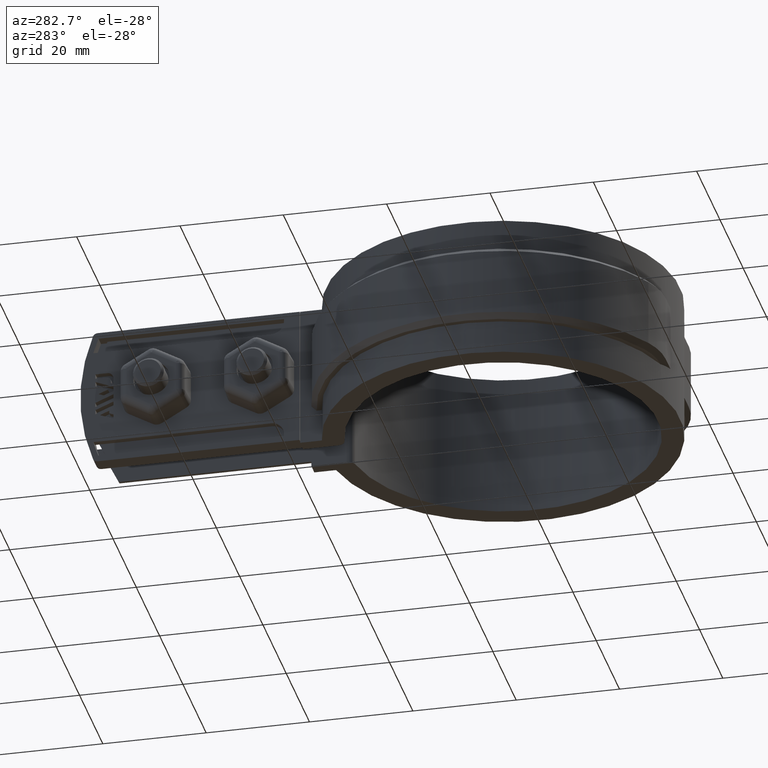
[diagram: clean part render]
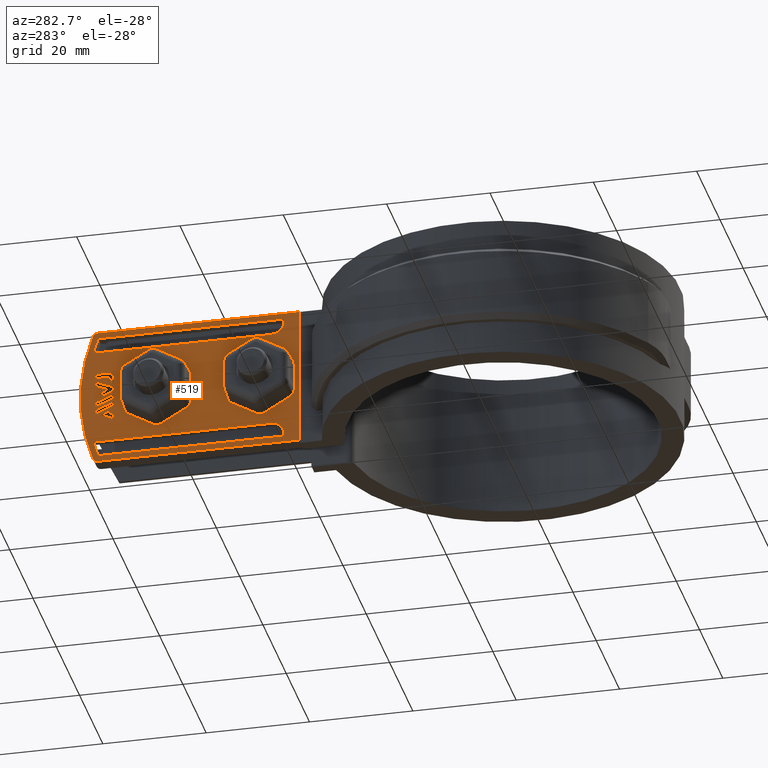
[diagram: same view with one face highlighted and labeled with its STEP entity id]
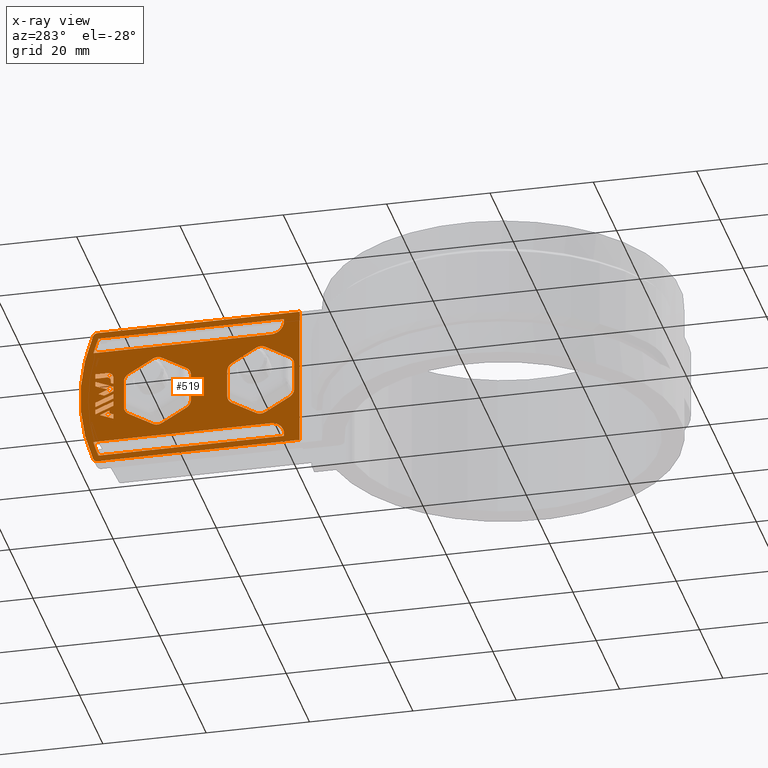
[diagram: x-ray of the same camera — body ghosted, the highlighted face saturated]
A machine part, auxiliary view. The second image highlights one B-rep face of the part: STEP entity #519.
The next image is the same camera in x-ray: the body ghosted, the highlighted face saturated — about 0% of this face is hidden behind the body in this view.
In plain terms, the highlighted planar face has unit normal (-1, 0, -0).
Its self-contained STEP definition (entity closure, byte-faithful):
#519 = ADVANCED_FACE( '', ( #1056, #1057, #1058, #1059, #1060, #1061, #1062, #1063, #1064, #1065 ), #1066, .T. );
#1056 = FACE_BOUND( '', #2342, .T. );
#1057 = FACE_BOUND( '', #2343, .T. );
#1058 = FACE_BOUND( '', #2344, .T. );
#1059 = FACE_BOUND( '', #2345, .T. );
#1060 = FACE_BOUND( '', #2346, .T. );
#1061 = FACE_OUTER_BOUND( '', #2347, .T. );
#1062 = FACE_BOUND( '', #2348, .T. );
#1063 = FACE_BOUND( '', #2349, .T. );
#1064 = FACE_BOUND( '', #2350, .T. );
#1065 = FACE_BOUND( '', #2351, .T. );
#1066 = PLANE( '', #2352 );
#2342 = EDGE_LOOP( '', ( #5198, #5199, #5200, #5201, #5202 ) );
#2343 = EDGE_LOOP( '', ( #5203, #5204, #5205, #5206 ) );
#2344 = EDGE_LOOP( '', ( #5207, #5208, #5209, #5210, #5211 ) );
#2345 = EDGE_LOOP( '', ( #5212, #5213, #5214, #5215, #5216, #5217, #5218, #5219, #5220, #5221, #5222, #5223 ) );
#2346 = EDGE_LOOP( '', ( #5224, #5225, #5226, #5227, #5228, #5229, #5230, #5231, #5232, #5233, #5234, #5235 ) );
#2347 = EDGE_LOOP( '', ( #5236, #5237, #5238, #5239, #5240, #5241 ) );
#2348 = EDGE_LOOP( '', ( #5242, #5243, #5244, #5245, #5246 ) );
#2349 = EDGE_LOOP( '', ( #5247, #5248, #5249, #5250, #5251, #5252, #5253, #5254, #5255, #5256, #5257, #5258, #5259, #5260, #5261, #5262, #5263, #5264, #5265, #5266, #5267, #5268, #5269, #5270, #5271, #5272, #5273, #5274, #5275, #5276, #5277, #5278, #5279, #5280, #5281, #5282, #5283, #5284, #5285, #5286 ) );
#2350 = EDGE_LOOP( '', ( #5287, #5288, #5289, #5290, #5291, #5292, #5293 ) );
#2351 = EDGE_LOOP( '', ( #5294, #5295, #5296, #5297 ) );
#2352 = AXIS2_PLACEMENT_3D( '', #5298, #5299, #5300 );
#5198 = ORIENTED_EDGE( '', *, *, #7214, .T. );
#5199 = ORIENTED_EDGE( '', *, *, #7215, .T. );
#5200 = ORIENTED_EDGE( '', *, *, #7216, .T. );
#5201 = ORIENTED_EDGE( '', *, *, #7217, .T. );
#5202 = ORIENTED_EDGE( '', *, *, #7218, .T. );
#5203 = ORIENTED_EDGE( '', *, *, #7219, .T. );
#5204 = ORIENTED_EDGE( '', *, *, #7220, .T. );
#5205 = ORIENTED_EDGE( '', *, *, #7221, .T. );
#5206 = ORIENTED_EDGE( '', *, *, #7222, .T. );
#5207 = ORIENTED_EDGE( '', *, *, #7223, .T. );
#5208 = ORIENTED_EDGE( '', *, *, #7224, .F. );
#5209 = ORIENTED_EDGE( '', *, *, #7225, .T. );
#5210 = ORIENTED_EDGE( '', *, *, #7226, .T. );
#5211 = ORIENTED_EDGE( '', *, *, #7227, .T. );
#5212 = ORIENTED_EDGE( '', *, *, #7228, .F. );
#5213 = ORIENTED_EDGE( '', *, *, #7229, .F. );
#5214 = ORIENTED_EDGE( '', *, *, #7230, .F. );
#5215 = ORIENTED_EDGE( '', *, *, #7231, .F. );
#5216 = ORIENTED_EDGE( '', *, *, #7232, .F. );
#5217 = ORIENTED_EDGE( '', *, *, #7233, .F. );
#5218 = ORIENTED_EDGE( '', *, *, #7234, .F. );
#5219 = ORIENTED_EDGE( '', *, *, #7235, .F. );
#5220 = ORIENTED_EDGE( '', *, *, #7236, .F. );
#5221 = ORIENTED_EDGE( '', *, *, #7237, .F. );
#5222 = ORIENTED_EDGE( '', *, *, #7238, .F. );
#5223 = ORIENTED_EDGE( '', *, *, #7239, .F. );
#5224 = ORIENTED_EDGE( '', *, *, #7240, .F. );
#5225 = ORIENTED_EDGE( '', *, *, #7241, .F. );
#5226 = ORIENTED_EDGE( '', *, *, #7242, .F. );
#5227 = ORIENTED_EDGE( '', *, *, #7243, .F. );
#5228 = ORIENTED_EDGE( '', *, *, #7244, .F. );
#5229 = ORIENTED_EDGE( '', *, *, #7245, .F. );
#5230 = ORIENTED_EDGE( '', *, *, #7246, .F. );
#5231 = ORIENTED_EDGE( '', *, *, #7247, .F. );
#5232 = ORIENTED_EDGE( '', *, *, #7248, .F. );
#5233 = ORIENTED_EDGE( '', *, *, #7249, .F. );
#5234 = ORIENTED_EDGE( '', *, *, #7250, .F. );
#5235 = ORIENTED_EDGE( '', *, *, #7251, .F. );
#5236 = ORIENTED_EDGE( '', *, *, #7252, .T. );
#5237 = ORIENTED_EDGE( '', *, *, #7253, .T. );
#5238 = ORIENTED_EDGE( '', *, *, #7254, .T. );
#5239 = ORIENTED_EDGE( '', *, *, #7255, .T. );
#5240 = ORIENTED_EDGE( '', *, *, #7256, .T. );
#5241 = ORIENTED_EDGE( '', *, *, #7257, .T. );
#5242 = ORIENTED_EDGE( '', *, *, #7258, .T. );
#5243 = ORIENTED_EDGE( '', *, *, #7259, .T. );
#5244 = ORIENTED_EDGE( '', *, *, #7260, .T. );
#5245 = ORIENTED_EDGE( '', *, *, #7261, .T. );
#5246 = ORIENTED_EDGE( '', *, *, #7262, .F. );
#5247 = ORIENTED_EDGE( '', *, *, #7263, .T. );
#5248 = ORIENTED_EDGE( '', *, *, #7264, .T. );
#5249 = ORIENTED_EDGE( '', *, *, #7265, .T. );
#5250 = ORIENTED_EDGE( '', *, *, #7266, .T. );
#5251 = ORIENTED_EDGE( '', *, *, #7267, .T. );
#5252 = ORIENTED_EDGE( '', *, *, #7268, .T. );
#5253 = ORIENTED_EDGE( '', *, *, #7269, .T. );
#5254 = ORIENTED_EDGE( '', *, *, #7270, .T. );
#5255 = ORIENTED_EDGE( '', *, *, #7271, .T. );
#5256 = ORIENTED_EDGE( '', *, *, #7272, .T. );
#5257 = ORIENTED_EDGE( '', *, *, #7273, .T. );
#5258 = ORIENTED_EDGE( '', *, *, #7274, .T. );
#5259 = ORIENTED_EDGE( '', *, *, #7275, .T. );
#5260 = ORIENTED_EDGE( '', *, *, #7276, .T. );
#5261 = ORIENTED_EDGE( '', *, *, #7277, .T. );
#5262 = ORIENTED_EDGE( '', *, *, #7278, .T. );
#5263 = ORIENTED_EDGE( '', *, *, #7279, .T. );
#5264 = ORIENTED_EDGE( '', *, *, #7280, .T. );
#5265 = ORIENTED_EDGE( '', *, *, #7281, .T. );
#5266 = ORIENTED_EDGE( '', *, *, #7282, .T. );
#5267 = ORIENTED_EDGE( '', *, *, #7283, .T. );
#5268 = ORIENTED_EDGE( '', *, *, #7284, .T. );
#5269 = ORIENTED_EDGE( '', *, *, #7285, .T. );
#5270 = ORIENTED_EDGE( '', *, *, #7286, .T. );
#5271 = ORIENTED_EDGE( '', *, *, #7287, .T. );
#5272 = ORIENTED_EDGE( '', *, *, #7288, .T. );
#5273 = ORIENTED_EDGE( '', *, *, #7289, .T. );
#5274 = ORIENTED_EDGE( '', *, *, #7290, .T. );
#5275 = ORIENTED_EDGE( '', *, *, #7291, .T. );
#5276 = ORIENTED_EDGE( '', *, *, #7292, .T. );
#5277 = ORIENTED_EDGE( '', *, *, #7293, .T. );
#5278 = ORIENTED_EDGE( '', *, *, #7294, .T. );
#5279 = ORIENTED_EDGE( '', *, *, #7295, .T. );
#5280 = ORIENTED_EDGE( '', *, *, #7296, .T. );
#5281 = ORIENTED_EDGE( '', *, *, #7297, .T. );
#5282 = ORIENTED_EDGE( '', *, *, #7298, .T. );
#5283 = ORIENTED_EDGE( '', *, *, #7299, .T. );
#5284 = ORIENTED_EDGE( '', *, *, #7300, .T. );
#5285 = ORIENTED_EDGE( '', *, *, #7301, .T. );
#5286 = ORIENTED_EDGE( '', *, *, #7302, .T. );
#5287 = ORIENTED_EDGE( '', *, *, #7303, .T. );
#5288 = ORIENTED_EDGE( '', *, *, #7304, .T. );
#5289 = ORIENTED_EDGE( '', *, *, #7305, .T. );
#5290 = ORIENTED_EDGE( '', *, *, #7306, .T. );
#5291 = ORIENTED_EDGE( '', *, *, #7307, .T. );
#5292 = ORIENTED_EDGE( '', *, *, #7308, .T. );
#5293 = ORIENTED_EDGE( '', *, *, #7309, .T. );
#5294 = ORIENTED_EDGE( '', *, *, #7310, .T. );
#5295 = ORIENTED_EDGE( '', *, *, #7311, .T. );
#5296 = ORIENTED_EDGE( '', *, *, #7312, .T. );
#5297 = ORIENTED_EDGE( '', *, *, #7313, .T. );
#5298 = CARTESIAN_POINT( '', ( -6.69999999999996, 43.8989738519301, -12.4999999999984 ) );
#5299 = DIRECTION( '', ( -1.00000000000000, 6.81102793110751E-016, -3.55799675438473E-016 ) );
#5300 = DIRECTION( '', ( 6.81102793110752E-016, 1.00000000000000, 1.97370347596304E-018 ) );
#7214 = EDGE_CURVE( '', #8428, #8429, #8430, .T. );
#7215 = EDGE_CURVE( '', #8429, #8431, #8432, .T. );
#7216 = EDGE_CURVE( '', #8431, #8433, #8434, .T. );
#7217 = EDGE_CURVE( '', #8433, #8435, #8436, .T. );
#7218 = EDGE_CURVE( '', #8435, #8428, #8437, .T. );
#7219 = EDGE_CURVE( '', #8438, #8439, #8440, .T. );
#7220 = EDGE_CURVE( '', #8439, #8441, #8442, .T. );
#7221 = EDGE_CURVE( '', #8441, #8443, #8444, .T. );
#7222 = EDGE_CURVE( '', #8443, #8438, #8445, .T. );
#7223 = EDGE_CURVE( '', #8446, #8447, #8448, .F. );
#7224 = EDGE_CURVE( '', #8449, #8447, #8450, .T. );
#7225 = EDGE_CURVE( '', #8449, #8451, #8452, .T. );
#7226 = EDGE_CURVE( '', #8451, #8453, #8454, .T. );
#7227 = EDGE_CURVE( '', #8453, #8446, #8455, .T. );
#7228 = EDGE_CURVE( '', #8456, #8457, #8458, .F. );
#7229 = EDGE_CURVE( '', #8459, #8456, #8460, .T. );
#7230 = EDGE_CURVE( '', #8461, #8459, #8462, .F. );
#7231 = EDGE_CURVE( '', #8463, #8461, #8464, .T. );
#7232 = EDGE_CURVE( '', #8465, #8463, #8466, .F. );
#7233 = EDGE_CURVE( '', #8467, #8465, #8468, .T. );
#7234 = EDGE_CURVE( '', #8469, #8467, #8470, .F. );
#7235 = EDGE_CURVE( '', #8471, #8469, #8472, .T. );
#7236 = EDGE_CURVE( '', #8473, #8471, #8474, .F. );
#7237 = EDGE_CURVE( '', #8475, #8473, #8476, .T. );
#7238 = EDGE_CURVE( '', #8477, #8475, #8478, .F. );
#7239 = EDGE_CURVE( '', #8457, #8477, #8479, .T. );
#7240 = EDGE_CURVE( '', #8480, #8481, #8482, .F. );
#7241 = EDGE_CURVE( '', #8483, #8480, #8484, .T. );
#7242 = EDGE_CURVE( '', #8485, #8483, #8486, .F. );
#7243 = EDGE_CURVE( '', #8487, #8485, #8488, .T. );
#7244 = EDGE_CURVE( '', #8489, #8487, #8490, .F. );
#7245 = EDGE_CURVE( '', #8491, #8489, #8492, .T. );
#7246 = EDGE_CURVE( '', #8493, #8491, #8494, .F. );
#7247 = EDGE_CURVE( '', #8495, #8493, #8496, .T. );
#7248 = EDGE_CURVE( '', #8497, #8495, #8498, .F. );
#7249 = EDGE_CURVE( '', #8499, #8497, #8500, .T. );
#7250 = EDGE_CURVE( '', #8501, #8499, #8502, .F. );
#7251 = EDGE_CURVE( '', #8481, #8501, #8503, .T. );
#7252 = EDGE_CURVE( '', #8504, #8505, #8506, .T. );
#7253 = EDGE_CURVE( '', #8505, #8507, #8508, .T. );
#7254 = EDGE_CURVE( '', #8507, #8509, #8510, .T. );
#7255 = EDGE_CURVE( '', #8509, #8511, #8512, .T. );
#7256 = EDGE_CURVE( '', #8511, #8513, #8514, .T. );
#7257 = EDGE_CURVE( '', #8513, #8504, #8515, .T. );
#7258 = EDGE_CURVE( '', #8516, #8517, #8518, .F. );
#7259 = EDGE_CURVE( '', #8517, #8519, #8520, .T. );
#7260 = EDGE_CURVE( '', #8519, #8521, #8522, .T. );
#7261 = EDGE_CURVE( '', #8521, #8523, #8524, .T. );
#7262 = EDGE_CURVE( '', #8516, #8523, #8525, .T. );
#7263 = EDGE_CURVE( '', #8526, #8527, #8528, .T. );
#7264 = EDGE_CURVE( '', #8527, #8529, #8530, .T. );
#7265 = EDGE_CURVE( '', #8529, #8531, #8532, .T. );
#7266 = EDGE_CURVE( '', #8531, #8533, #8534, .T. );
#7267 = EDGE_CURVE( '', #8533, #8535, #8536, .T. );
#7268 = EDGE_CURVE( '', #8535, #8537, #8538, .T. );
#7269 = EDGE_CURVE( '', #8537, #8539, #8540, .T. );
#7270 = EDGE_CURVE( '', #8539, #8541, #8542, .T. );
#7271 = EDGE_CURVE( '', #8541, #8543, #8544, .T. );
#7272 = EDGE_CURVE( '', #8543, #8545, #8546, .T. );
#7273 = EDGE_CURVE( '', #8545, #8547, #8548, .T. );
#7274 = EDGE_CURVE( '', #8547, #8549, #8550, .T. );
#7275 = EDGE_CURVE( '', #8549, #8551, #8552, .T. );
#7276 = EDGE_CURVE( '', #8551, #8553, #8554, .T. );
#7277 = EDGE_CURVE( '', #8553, #8555, #8556, .T. );
#7278 = EDGE_CURVE( '', #8555, #8557, #8558, .T. );
#7279 = EDGE_CURVE( '', #8557, #8559, #8560, .T. );
#7280 = EDGE_CURVE( '', #8559, #8561, #8562, .T. );
#7281 = EDGE_CURVE( '', #8561, #8563, #8564, .T. );
#7282 = EDGE_CURVE( '', #8563, #8565, #8566, .T. );
#7283 = EDGE_CURVE( '', #8565, #8567, #8568, .T. );
#7284 = EDGE_CURVE( '', #8567, #8569, #8570, .T. );
#7285 = EDGE_CURVE( '', #8569, #8571, #8572, .T. );
#7286 = EDGE_CURVE( '', #8571, #8573, #8574, .T. );
#7287 = EDGE_CURVE( '', #8573, #8575, #8576, .T. );
#7288 = EDGE_CURVE( '', #8575, #8577, #8578, .T. );
#7289 = EDGE_CURVE( '', #8577, #8579, #8580, .T. );
#7290 = EDGE_CURVE( '', #8579, #8581, #8582, .T. );
#7291 = EDGE_CURVE( '', #8581, #8583, #8584, .T. );
#7292 = EDGE_CURVE( '', #8583, #8585, #8586, .T. );
#7293 = EDGE_CURVE( '', #8585, #8587, #8588, .T. );
#7294 = EDGE_CURVE( '', #8587, #8589, #8590, .T. );
#7295 = EDGE_CURVE( '', #8589, #8591, #8592, .T. );
#7296 = EDGE_CURVE( '', #8591, #8593, #8594, .T. );
#7297 = EDGE_CURVE( '', #8593, #8595, #8596, .T. );
#7298 = EDGE_CURVE( '', #8595, #8597, #8598, .T. );
#7299 = EDGE_CURVE( '', #8597, #8599, #8600, .T. );
#7300 = EDGE_CURVE( '', #8599, #8601, #8602, .T. );
#7301 = EDGE_CURVE( '', #8601, #8603, #8604, .T. );
#7302 = EDGE_CURVE( '', #8603, #8526, #8605, .F. );
#7303 = EDGE_CURVE( '', #8606, #8607, #8608, .T. );
#7304 = EDGE_CURVE( '', #8607, #8609, #8610, .T. );
#7305 = EDGE_CURVE( '', #8609, #8611, #8612, .T. );
#7306 = EDGE_CURVE( '', #8611, #8613, #8614, .T. );
#7307 = EDGE_CURVE( '', #8613, #8615, #8616, .T. );
#7308 = EDGE_CURVE( '', #8615, #8617, #8618, .T. );
#7309 = EDGE_CURVE( '', #8617, #8606, #8619, .T. );
#7310 = EDGE_CURVE( '', #8620, #8621, #8622, .T. );
#7311 = EDGE_CURVE( '', #8621, #8623, #8624, .T. );
#7312 = EDGE_CURVE( '', #8623, #8625, #8626, .T. );
#7313 = EDGE_CURVE( '', #8625, #8620, #8627, .T. );
#8428 = VERTEX_POINT( '', #12110 );
#8429 = VERTEX_POINT( '', #12111 );
#8430 = LINE( '', #12112, #12113 );
#8431 = VERTEX_POINT( '', #12114 );
#8432 = LINE( '', #12115, #12116 );
#8433 = VERTEX_POINT( '', #12117 );
#8434 = LINE( '', #12118, #12119 );
#8435 = VERTEX_POINT( '', #12120 );
#8436 = LINE( '', #12121, #12122 );
#8437 = LINE( '', #12123, #12124 );
#8438 = VERTEX_POINT( '', #12125 );
#8439 = VERTEX_POINT( '', #12126 );
#8440 = LINE( '', #12127, #12128 );
#8441 = VERTEX_POINT( '', #12129 );
#8442 = LINE( '', #12130, #12131 );
#8443 = VERTEX_POINT( '', #12132 );
#8444 = LINE( '', #12133, #12134 );
#8445 = LINE( '', #12135, #12136 );
#8446 = VERTEX_POINT( '', #12137 );
#8447 = VERTEX_POINT( '', #12138 );
#8448 = CIRCLE( '', #12139, 35.1999999999925 );
#8449 = VERTEX_POINT( '', #12140 );
#8450 = LINE( '', #12141, #12142 );
#8451 = VERTEX_POINT( '', #12143 );
#8452 = LINE( '', #12144, #12145 );
#8453 = VERTEX_POINT( '', #12146 );
#8454 = CIRCLE( '', #12147, 2.49999999999946 );
#8455 = LINE( '', #12148, #12149 );
#8456 = VERTEX_POINT( '', #12150 );
#8457 = VERTEX_POINT( '', #12151 );
#8458 = LINE( '', #12152, #12153 );
#8459 = VERTEX_POINT( '', #12154 );
#8460 = CIRCLE( '', #12155, 1.77252045227143 );
#8461 = VERTEX_POINT( '', #12156 );
#8462 = LINE( '', #12157, #12158 );
#8463 = VERTEX_POINT( '', #12159 );
#8464 = CIRCLE( '', #12160, 1.77252045227143 );
#8465 = VERTEX_POINT( '', #12161 );
#8466 = LINE( '', #12162, #12163 );
#8467 = VERTEX_POINT( '', #12164 );
#8468 = CIRCLE( '', #12165, 1.77252045227144 );
#8469 = VERTEX_POINT( '', #12166 );
#8470 = LINE( '', #12167, #12168 );
#8471 = VERTEX_POINT( '', #12169 );
#8472 = CIRCLE( '', #12170, 1.77252045227144 );
#8473 = VERTEX_POINT( '', #12171 );
#8474 = LINE( '', #12172, #12173 );
#8475 = VERTEX_POINT( '', #12174 );
#8476 = CIRCLE( '', #12175, 1.77252045227143 );
#8477 = VERTEX_POINT( '', #12176 );
#8478 = LINE( '', #12177, #12178 );
#8479 = CIRCLE( '', #12179, 1.77252045227144 );
#8480 = VERTEX_POINT( '', #12180 );
#8481 = VERTEX_POINT( '', #12181 );
#8482 = LINE( '', #12182, #12183 );
#8483 = VERTEX_POINT( '', #12184 );
#8484 = CIRCLE( '', #12185, 1.77252045227147 );
#8485 = VERTEX_POINT( '', #12186 );
#8486 = LINE( '', #12187, #12188 );
#8487 = VERTEX_POINT( '', #12189 );
#8488 = CIRCLE( '', #12190, 1.77252045227147 );
#8489 = VERTEX_POINT( '', #12191 );
#8490 = LINE( '', #12192, #12193 );
#8491 = VERTEX_POINT( '', #12194 );
#8492 = CIRCLE( '', #12195, 1.77252045227147 );
#8493 = VERTEX_POINT( '', #12196 );
#8494 = LINE( '', #12197, #12198 );
#8495 = VERTEX_POINT( '', #12199 );
#8496 = CIRCLE( '', #12200, 1.77252045227148 );
#8497 = VERTEX_POINT( '', #12201 );
#8498 = LINE( '', #12202, #12203 );
#8499 = VERTEX_POINT( '', #12204 );
#8500 = CIRCLE( '', #12205, 1.77252045227147 );
#8501 = VERTEX_POINT( '', #12206 );
#8502 = LINE( '', #12207, #12208 );
#8503 = CIRCLE( '', #12209, 1.77252045227148 );
#8504 = VERTEX_POINT( '', #12210 );
#8505 = VERTEX_POINT( '', #12211 );
#8506 = CIRCLE( '', #12212, 36.3999999999930 );
#8507 = VERTEX_POINT( '', #12213 );
#8508 = CIRCLE( '', #12214, 0.999999999999786 );
#8509 = VERTEX_POINT( '', #12215 );
#8510 = LINE( '', #12216, #12217 );
#8511 = VERTEX_POINT( '', #12218 );
#8512 = LINE( '', #12219, #12220 );
#8513 = VERTEX_POINT( '', #12221 );
#8514 = LINE( '', #12222, #12223 );
#8515 = CIRCLE( '', #12224, 0.999999999999786 );
#8516 = VERTEX_POINT( '', #12225 );
#8517 = VERTEX_POINT( '', #12226 );
#8518 = CIRCLE( '', #12227, 35.1999999999925 );
#8519 = VERTEX_POINT( '', #12228 );
#8520 = LINE( '', #12229, #12230 );
#8521 = VERTEX_POINT( '', #12231 );
#8522 = CIRCLE( '', #12232, 2.49999999999952 );
#8523 = VERTEX_POINT( '', #12233 );
#8524 = LINE( '', #12234, #12235 );
#8525 = LINE( '', #12236, #12237 );
#8526 = VERTEX_POINT( '', #12238 );
#8527 = VERTEX_POINT( '', #12239 );
#8528 = LINE( '', #12240, #12241 );
#8529 = VERTEX_POINT( '', #12242 );
#8530 = LINE( '', #12243, #12244 );
#8531 = VERTEX_POINT( '', #12245 );
#8532 = LINE( '', #12246, #12247 );
#8533 = VERTEX_POINT( '', #12248 );
#8534 = LINE( '', #12249, #12250 );
#8535 = VERTEX_POINT( '', #12251 );
#8536 = LINE( '', #12252, #12253 );
#8537 = VERTEX_POINT( '', #12254 );
#8538 = LINE( '', #12255, #12256 );
#8539 = VERTEX_POINT( '', #12257 );
#8540 = LINE( '', #12258, #12259 );
#8541 = VERTEX_POINT( '', #12260 );
#8542 = LINE( '', #12261, #12262 );
#8543 = VERTEX_POINT( '', #12263 );
#8544 = LINE( '', #12264, #12265 );
#8545 = VERTEX_POINT( '', #12266 );
#8546 = LINE( '', #12267, #12268 );
#8547 = VERTEX_POINT( '', #12269 );
#8548 = LINE( '', #12270, #12271 );
#8549 = VERTEX_POINT( '', #12272 );
#8550 = LINE( '', #12273, #12274 );
#8551 = VERTEX_POINT( '', #12275 );
#8552 = LINE( '', #12276, #12277 );
#8553 = VERTEX_POINT( '', #12278 );
#8554 = LINE( '', #12279, #12280 );
#8555 = VERTEX_POINT( '', #12281 );
#8556 = LINE( '', #12282, #12283 );
#8557 = VERTEX_POINT( '', #12284 );
#8558 = LINE( '', #12285, #12286 );
#8559 = VERTEX_POINT( '', #12287 );
#8560 = LINE( '', #12288, #12289 );
#8561 = VERTEX_POINT( '', #12290 );
#8562 = LINE( '', #12291, #12292 );
#8563 = VERTEX_POINT( '', #12293 );
#8564 = LINE( '', #12294, #12295 );
#8565 = VERTEX_POINT( '', #12296 );
#8566 = LINE( '', #12297, #12298 );
#8567 = VERTEX_POINT( '', #12299 );
#8568 = LINE( '', #12300, #12301 );
#8569 = VERTEX_POINT( '', #12302 );
#8570 = LINE( '', #12303, #12304 );
#8571 = VERTEX_POINT( '', #12305 );
#8572 = LINE( '', #12306, #12307 );
#8573 = VERTEX_POINT( '', #12308 );
#8574 = LINE( '', #12309, #12310 );
#8575 = VERTEX_POINT( '', #12311 );
#8576 = LINE( '', #12312, #12313 );
#8577 = VERTEX_POINT( '', #12314 );
#8578 = LINE( '', #12315, #12316 );
#8579 = VERTEX_POINT( '', #12317 );
#8580 = LINE( '', #12318, #12319 );
#8581 = VERTEX_POINT( '', #12320 );
#8582 = LINE( '', #12321, #12322 );
#8583 = VERTEX_POINT( '', #12323 );
#8584 = LINE( '', #12324, #12325 );
#8585 = VERTEX_POINT( '', #12326 );
#8586 = LINE( '', #12327, #12328 );
#8587 = VERTEX_POINT( '', #12329 );
#8588 = LINE( '', #12330, #12331 );
#8589 = VERTEX_POINT( '', #12332 );
#8590 = LINE( '', #12333, #12334 );
#8591 = VERTEX_POINT( '', #12335 );
#8592 = LINE( '', #12336, #12337 );
#8593 = VERTEX_POINT( '', #12338 );
#8594 = LINE( '', #12339, #12340 );
#8595 = VERTEX_POINT( '', #12341 );
#8596 = LINE( '', #12342, #12343 );
#8597 = VERTEX_POINT( '', #12344 );
#8598 = LINE( '', #12345, #12346 );
#8599 = VERTEX_POINT( '', #12347 );
#8600 = LINE( '', #12348, #12349 );
#8601 = VERTEX_POINT( '', #12350 );
#8602 = LINE( '', #12351, #12352 );
#8603 = VERTEX_POINT( '', #12353 );
#8604 = LINE( '', #12354, #12355 );
#8605 = CIRCLE( '', #12356, 1.16712912069168 );
#8606 = VERTEX_POINT( '', #12357 );
#8607 = VERTEX_POINT( '', #12358 );
#8608 = LINE( '', #12359, #12360 );
#8609 = VERTEX_POINT( '', #12361 );
#8610 = LINE( '', #12362, #12363 );
#8611 = VERTEX_POINT( '', #12364 );
#8612 = LINE( '', #12365, #12366 );
#8613 = VERTEX_POINT( '', #12367 );
#8614 = LINE( '', #12368, #12369 );
#8615 = VERTEX_POINT( '', #12370 );
#8616 = LINE( '', #12371, #12372 );
#8617 = VERTEX_POINT( '', #12373 );
#8618 = LINE( '', #12374, #12375 );
#8619 = LINE( '', #12376, #12377 );
#8620 = VERTEX_POINT( '', #12378 );
#8621 = VERTEX_POINT( '', #12379 );
#8622 = LINE( '', #12380, #12381 );
#8623 = VERTEX_POINT( '', #12382 );
#8624 = LINE( '', #12383, #12384 );
#8625 = VERTEX_POINT( '', #12385 );
#8626 = LINE( '', #12386, #12387 );
#8627 = LINE( '', #12388, #12389 );
#12110 = CARTESIAN_POINT( '', ( -6.69999999999994, 74.7106718686982, -15.6427309999978 ) );
#12111 = CARTESIAN_POINT( '', ( -6.69999999999994, 74.7106718686982, -16.2049013519977 ) );
#12112 = CARTESIAN_POINT( '', ( -6.69999999999994, 74.7106718686982, -12.4999999999984 ) );
#12113 = VECTOR( '', #13950, 999.999999999951 );
#12114 = CARTESIAN_POINT( '', ( -6.69999999999994, 73.9026659646984, -16.5315944439976 ) );
#12115 = CARTESIAN_POINT( '', ( -6.69999999999995, 49.5156857365579, -26.3917426630063 ) );
#12116 = VECTOR( '', #13951, 999.999999999932 );
#12117 = CARTESIAN_POINT( '', ( -6.69999999999994, 73.9026659646984, -17.4353519199975 ) );
#12118 = CARTESIAN_POINT( '', ( -6.69999999999994, 73.9026659646984, -12.4999999999984 ) );
#12119 = VECTOR( '', #13952, 999.999999999951 );
#12120 = CARTESIAN_POINT( '', ( -6.69999999999993, 76.5257030786978, -16.3757128079977 ) );
#12121 = CARTESIAN_POINT( '', ( -6.69999999999995, 49.8224941226987, -27.1631181690054 ) );
#12122 = VECTOR( '', #13953, 999.999999999932 );
#12123 = CARTESIAN_POINT( '', ( -6.69999999999996, 47.1281525094041, -4.50381239750697 ) );
#12124 = VECTOR( '', #13954, 999.999999999932 );
#12125 = CARTESIAN_POINT( '', ( -6.69999999999994, 77.4011047886976, -14.5449628859980 ) );
#12126 = CARTESIAN_POINT( '', ( -6.69999999999993, 77.4011047886976, -13.6409432239982 ) );
#12127 = CARTESIAN_POINT( '', ( -6.69999999999993, 77.4011047886976, -12.4999999999984 ) );
#12128 = VECTOR( '', #13955, 999.999999999951 );
#12129 = CARTESIAN_POINT( '', ( -6.69999999999994, 73.9026659646984, -12.2273304499985 ) );
#12130 = CARTESIAN_POINT( '', ( -6.69999999999996, 48.2048855311373, -1.84363860576165 ) );
#12131 = VECTOR( '', #13956, 999.999999999932 );
#12132 = CARTESIAN_POINT( '', ( -6.69999999999994, 73.9026659646984, -13.1313508899983 ) );
#12133 = CARTESIAN_POINT( '', ( -6.69999999999994, 73.9026659646984, -12.4999999999984 ) );
#12134 = VECTOR( '', #13957, 999.999999999951 );
#12135 = CARTESIAN_POINT( '', ( -6.69999999999996, 47.8908647039627, -2.62077856056641 ) );
#12136 = VECTOR( '', #13958, 999.999999999932 );
#12137 = CARTESIAN_POINT( '', ( -6.69999999999994, 77.7927785955630, -3.00000000000024 ) );
#12138 = CARTESIAN_POINT( '', ( -6.69999999999995, 76.8047484211381, -8.13462610311884E-013 ) );
#12139 = AXIS2_PLACEMENT_3D( '', #13959, #13960, #13961 );
#12140 = CARTESIAN_POINT( '', ( -6.69999999999996, 40.8989738519308, -8.03138864911814E-013 ) );
#12141 = CARTESIAN_POINT( '', ( -6.69999999999997, 37.8989738519314, -8.01028140122419E-013 ) );
#12142 = VECTOR( '', #13962, 999.999999999929 );
#12143 = CARTESIAN_POINT( '', ( -6.69999999999996, 40.8989738519308, -0.500000000000706 ) );
#12144 = CARTESIAN_POINT( '', ( -6.69999999999996, 40.8989738519308, 1.19999999999896 ) );
#12145 = VECTOR( '', #13963, 999.999999999951 );
#12146 = CARTESIAN_POINT( '', ( -6.69999999999996, 43.3989738519302, -3.00000000000023 ) );
#12147 = AXIS2_PLACEMENT_3D( '', #13964, #13965, #13966 );
#12148 = CARTESIAN_POINT( '', ( -6.69999999999996, 43.3989738519302, -3.00000000000023 ) );
#12149 = VECTOR( '', #13967, 999.999999999929 );
#12150 = CARTESIAN_POINT( '', ( -6.69999999999994, 71.8714943041959, -9.78645373480769 ) );
#12151 = CARTESIAN_POINT( '', ( -6.69999999999994, 71.8714943041959, -15.2135462651891 ) );
#12152 = CARTESIAN_POINT( '', ( -6.69999999999994, 71.8714943041959, -15.2135462651891 ) );
#12153 = VECTOR( '', #13968, 999.999999999951 );
#12154 = CARTESIAN_POINT( '', ( -6.69999999999994, 70.9852340780602, -8.25140599441310 ) );
#12155 = AXIS2_PLACEMENT_3D( '', #13969, #13970, #13971 );
#12156 = CARTESIAN_POINT( '', ( -6.69999999999995, 66.2852340780612, -5.53785972922240 ) );
#12157 = CARTESIAN_POINT( '', ( -6.69999999999994, 73.3352340780597, -9.60817912700846 ) );
#12158 = VECTOR( '', #13972, 999.999999999934 );
#12159 = CARTESIAN_POINT( '', ( -6.69999999999995, 64.5127136257897, -5.53785972922238 ) );
#12160 = AXIS2_PLACEMENT_3D( '', #13973, #13974, #13975 );
#12161 = CARTESIAN_POINT( '', ( -6.69999999999995, 59.8127136257907, -8.25140599441310 ) );
#12162 = CARTESIAN_POINT( '', ( -6.69999999999995, 64.5127136257897, -5.53785972922238 ) );
#12163 = VECTOR( '', #13976, 999.999999999934 );
#12164 = CARTESIAN_POINT( '', ( -6.69999999999995, 58.9264533996550, -9.78645373480769 ) );
#12165 = AXIS2_PLACEMENT_3D( '', #13977, #13978, #13979 );
#12166 = CARTESIAN_POINT( '', ( -6.69999999999995, 58.9264533996550, -15.2135462651891 ) );
#12167 = CARTESIAN_POINT( '', ( -6.69999999999995, 58.9264533996550, -15.2135462651891 ) );
#12168 = VECTOR( '', #13980, 999.999999999951 );
#12169 = CARTESIAN_POINT( '', ( -6.69999999999995, 59.8127136257907, -16.7485940055837 ) );
#12170 = AXIS2_PLACEMENT_3D( '', #13981, #13982, #13983 );
#12171 = CARTESIAN_POINT( '', ( -6.69999999999994, 64.5127136257898, -19.4621402707744 ) );
#12172 = CARTESIAN_POINT( '', ( -6.69999999999994, 66.8627136257893, -20.8189134033698 ) );
#12173 = VECTOR( '', #13984, 999.999999999934 );
#12174 = CARTESIAN_POINT( '', ( -6.69999999999994, 66.2852340780612, -19.4621402707744 ) );
#12175 = AXIS2_PLACEMENT_3D( '', #13985, #13986, #13987 );
#12176 = CARTESIAN_POINT( '', ( -6.69999999999994, 70.9852340780602, -16.7485940055837 ) );
#12177 = CARTESIAN_POINT( '', ( -6.69999999999994, 70.9852340780602, -16.7485940055837 ) );
#12178 = VECTOR( '', #13988, 999.999999999934 );
#12179 = AXIS2_PLACEMENT_3D( '', #13989, #13990, #13991 );
#12180 = CARTESIAN_POINT( '', ( -6.69999999999995, 51.8714943042002, -9.78645373480769 ) );
#12181 = CARTESIAN_POINT( '', ( -6.69999999999995, 51.8714943042002, -15.2135462651891 ) );
#12182 = CARTESIAN_POINT( '', ( -6.69999999999995, 51.8714943042002, -15.2135462651891 ) );
#12183 = VECTOR( '', #13992, 999.999999999951 );
#12184 = CARTESIAN_POINT( '', ( -6.69999999999995, 50.9852340780645, -8.25140599441311 ) );
#12185 = AXIS2_PLACEMENT_3D( '', #13993, #13994, #13995 );
#12186 = CARTESIAN_POINT( '', ( -6.69999999999996, 46.2852340780655, -5.53785972922239 ) );
#12187 = CARTESIAN_POINT( '', ( -6.69999999999995, 53.3352340780640, -9.60817912700846 ) );
#12188 = VECTOR( '', #13996, 999.999999999934 );
#12189 = CARTESIAN_POINT( '', ( -6.69999999999996, 44.5127136257940, -5.53785972922239 ) );
#12190 = AXIS2_PLACEMENT_3D( '', #13997, #13998, #13999 );
#12191 = CARTESIAN_POINT( '', ( -6.69999999999996, 39.8127136257950, -8.25140599441311 ) );
#12192 = CARTESIAN_POINT( '', ( -6.69999999999996, 44.5127136257940, -5.53785972922239 ) );
#12193 = VECTOR( '', #14000, 999.999999999934 );
#12194 = CARTESIAN_POINT( '', ( -6.69999999999996, 38.9264533996593, -9.78645373480768 ) );
#12195 = AXIS2_PLACEMENT_3D( '', #14001, #14002, #14003 );
#12196 = CARTESIAN_POINT( '', ( -6.69999999999996, 38.9264533996593, -15.2135462651891 ) );
#12197 = CARTESIAN_POINT( '', ( -6.69999999999996, 38.9264533996593, -15.2135462651891 ) );
#12198 = VECTOR( '', #14004, 999.999999999951 );
#12199 = CARTESIAN_POINT( '', ( -6.69999999999996, 39.8127136257950, -16.7485940055837 ) );
#12200 = AXIS2_PLACEMENT_3D( '', #14005, #14006, #14007 );
#12201 = CARTESIAN_POINT( '', ( -6.69999999999995, 44.5127136257940, -19.4621402707744 ) );
#12202 = CARTESIAN_POINT( '', ( -6.69999999999995, 46.8627136257935, -20.8189134033698 ) );
#12203 = VECTOR( '', #14008, 999.999999999934 );
#12204 = CARTESIAN_POINT( '', ( -6.69999999999995, 46.2852340780655, -19.4621402707744 ) );
#12205 = AXIS2_PLACEMENT_3D( '', #14009, #14010, #14011 );
#12206 = CARTESIAN_POINT( '', ( -6.69999999999995, 50.9852340780645, -16.7485940055837 ) );
#12207 = CARTESIAN_POINT( '', ( -6.69999999999995, 50.9852340780645, -16.7485940055837 ) );
#12208 = VECTOR( '', #14012, 999.999999999934 );
#12209 = AXIS2_PLACEMENT_3D( '', #14013, #14014, #14015 );
#12210 = CARTESIAN_POINT( '', ( -6.69999999999994, 77.8758610547234, 0.558757062145972 ) );
#12211 = CARTESIAN_POINT( '', ( -6.69999999999993, 77.8758610547234, -25.5587570621428 ) );
#12212 = AXIS2_PLACEMENT_3D( '', #14016, #14017, #14018 );
#12213 = CARTESIAN_POINT( '', ( -6.69999999999993, 76.9424300876136, -26.1999999999958 ) );
#12214 = AXIS2_PLACEMENT_3D( '', #14019, #14020, #14021 );
#12215 = CARTESIAN_POINT( '', ( -6.69999999999996, 37.8989738519314, -26.1999999999958 ) );
#12216 = CARTESIAN_POINT( '', ( -6.69999999999996, 40.8989738519308, -26.1999999999958 ) );
#12217 = VECTOR( '', #14022, 999.999999999929 );
#12218 = CARTESIAN_POINT( '', ( -6.69999999999997, 37.8989738519314, 1.19999999999896 ) );
#12219 = CARTESIAN_POINT( '', ( -6.69999999999996, 37.8989738519314, -26.1999999999958 ) );
#12220 = VECTOR( '', #14023, 999.999999999951 );
#12221 = CARTESIAN_POINT( '', ( -6.69999999999994, 76.9424300876137, 1.19999999999896 ) );
#12222 = CARTESIAN_POINT( '', ( -6.69999999999997, 37.8989738519314, 1.19999999999896 ) );
#12223 = VECTOR( '', #14024, 999.999999999929 );
#12224 = AXIS2_PLACEMENT_3D( '', #14025, #14026, #14027 );
#12225 = CARTESIAN_POINT( '', ( -6.69999999999993, 76.8047484211381, -24.9999999999960 ) );
#12226 = CARTESIAN_POINT( '', ( -6.69999999999994, 77.7927785955630, -21.9999999999966 ) );
#12227 = AXIS2_PLACEMENT_3D( '', #14028, #14029, #14030 );
#12228 = CARTESIAN_POINT( '', ( -6.69999999999995, 43.3989738519302, -21.9999999999966 ) );
#12229 = CARTESIAN_POINT( '', ( -6.69999999999993, 78.6228849219620, -21.9999999999966 ) );
#12230 = VECTOR( '', #14031, 999.999999999929 );
#12231 = CARTESIAN_POINT( '', ( -6.69999999999995, 40.8989738519308, -24.4999999999961 ) );
#12232 = AXIS2_PLACEMENT_3D( '', #14032, #14033, #14034 );
#12233 = CARTESIAN_POINT( '', ( -6.69999999999996, 40.8989738519308, -24.9999999999960 ) );
#12234 = CARTESIAN_POINT( '', ( -6.69999999999995, 40.8989738519308, -24.4999999999961 ) );
#12235 = VECTOR( '', #14035, 999.999999999951 );
#12236 = CARTESIAN_POINT( '', ( -6.69999999999993, 76.5907159284782, -24.9999999999960 ) );
#12237 = VECTOR( '', #14036, 999.999999999929 );
#12238 = CARTESIAN_POINT( '', ( -6.69999999999994, 73.9026659718370, -8.74297971174777 ) );
#12239 = CARTESIAN_POINT( '', ( -6.69999999999994, 73.9026659646984, -9.97073444799889 ) );
#12240 = CARTESIAN_POINT( '', ( -6.69999999999994, 73.9026659499924, -12.5000001744499 ) );
#12241 = VECTOR( '', #14037, 999.999999999951 );
#12242 = CARTESIAN_POINT( '', ( -6.69999999999994, 74.4114056106983, -9.76519073799894 ) );
#12243 = CARTESIAN_POINT( '', ( -6.69999999999995, 47.2308927815000, -20.7468067581822 ) );
#12244 = VECTOR( '', #14038, 999.999999999932 );
#12245 = CARTESIAN_POINT( '', ( -6.69999999999994, 74.4114056106983, -9.26826424399904 ) );
#12246 = CARTESIAN_POINT( '', ( -6.69999999999994, 74.4114056106983, -12.4999999999984 ) );
#12247 = VECTOR( '', #14039, 999.999999999951 );
#12248 = CARTESIAN_POINT( '', ( -6.69999999999994, 74.4121026986983, -9.23547076599904 ) );
#12249 = CARTESIAN_POINT( '', ( -6.69999999999994, 74.3289589179187, -13.1468474441665 ) );
#12250 = VECTOR( '', #14040, 999.999999999952 );
#12251 = CARTESIAN_POINT( '', ( -6.69999999999994, 74.4141861826983, -9.20269440399906 ) );
#12252 = CARTESIAN_POINT( '', ( -6.69999999999994, 74.0826237625093, -14.4186739410066 ) );
#12253 = VECTOR( '', #14041, 999.999999999952 );
#12254 = CARTESIAN_POINT( '', ( -6.69999999999994, 74.4176451706983, -9.17002851799906 ) );
#12255 = CARTESIAN_POINT( '', ( -6.69999999999994, 73.7305430780189, -15.6588624283432 ) );
#12256 = VECTOR( '', #14042, 999.999999999951 );
#12257 = CARTESIAN_POINT( '', ( -6.69999999999994, 74.4224679926983, -9.13756568999906 ) );
#12258 = CARTESIAN_POINT( '', ( -6.69999999999994, 73.2745694608623, -16.8641690356046 ) );
#12259 = VECTOR( '', #14043, 999.999999999951 );
#12260 = CARTESIAN_POINT( '', ( -6.69999999999994, 74.4286429786983, -9.10540005799905 ) );
#12261 = CARTESIAN_POINT( '', ( -6.69999999999994, 72.7149733025247, -18.0319414579921 ) );
#12262 = VECTOR( '', #14044, 999.999999999951 );
#12263 = CARTESIAN_POINT( '', ( -6.69999999999994, 74.4375448546983, -9.06837192599907 ) );
#12264 = CARTESIAN_POINT( '', ( -6.69999999999994, 71.9890519719709, -19.2530922773786 ) );
#12265 = VECTOR( '', #14045, 999.999999999950 );
#12266 = CARTESIAN_POINT( '', ( -6.69999999999994, 74.4482874786982, -9.03175224399907 ) );
#12267 = CARTESIAN_POINT( '', ( -6.69999999999994, 71.0907798376863, -20.4768947088589 ) );
#12268 = VECTOR( '', #14046, 999.999999999950 );
#12269 = CARTESIAN_POINT( '', ( -6.69999999999994, 74.4608140566983, -8.99566860399908 ) );
#12270 = CARTESIAN_POINT( '', ( -6.69999999999994, 70.0880700790585, -21.5916480886817 ) );
#12271 = VECTOR( '', #14047, 999.999999999949 );
#12272 = CARTESIAN_POINT( '', ( -6.69999999999994, 74.4750670166983, -8.96024704199909 ) );
#12273 = CARTESIAN_POINT( '', ( -6.69999999999994, 68.9884854576528, -22.5955402626196 ) );
#12274 = VECTOR( '', #14048, 999.999999999948 );
#12275 = CARTESIAN_POINT( '', ( -6.69999999999994, 74.4909887866983, -8.92561592799909 ) );
#12276 = CARTESIAN_POINT( '', ( -6.69999999999994, 67.7963836246165, -23.4869137330206 ) );
#12277 = VECTOR( '', #14049, 999.999999999948 );
#12278 = CARTESIAN_POINT( '', ( -6.69999999999994, 74.5085217946982, -8.89190129799911 ) );
#12279 = CARTESIAN_POINT( '', ( -6.69999999999994, 66.5156376643568, -24.2616046077456 ) );
#12280 = VECTOR( '', #14050, 999.999999999947 );
#12281 = CARTESIAN_POINT( '', ( -6.69999999999994, 74.5276076906982, -8.85923152199911 ) );
#12282 = CARTESIAN_POINT( '', ( -6.69999999999994, 65.1483077436059, -24.9139993101220 ) );
#12283 = VECTOR( '', #14051, 999.999999999946 );
#12284 = CARTESIAN_POINT( '', ( -6.69999999999994, 74.5483764006982, -8.82742610399911 ) );
#12285 = CARTESIAN_POINT( '', ( -6.69999999999994, 63.7049506125960, -25.4331608724341 ) );
#12286 = VECTOR( '', #14052, 999.999999999945 );
#12287 = CARTESIAN_POINT( '', ( -6.69999999999994, 74.5707267846982, -8.79662508399912 ) );
#12288 = CARTESIAN_POINT( '', ( -6.69999999999994, 62.2307943074136, -25.8022616328627 ) );
#12289 = VECTOR( '', #14053, 999.999999999943 );
#12290 = CARTESIAN_POINT( '', ( -6.69999999999994, 74.5945701506982, -8.76692337799913 ) );
#12291 = CARTESIAN_POINT( '', ( -6.69999999999994, 60.7430558971302, -26.0217691918984 ) );
#12292 = VECTOR( '', #14054, 999.999999999943 );
#12293 = CARTESIAN_POINT( '', ( -6.69999999999994, 74.6198178066982, -8.73841356799913 ) );
#12294 = CARTESIAN_POINT( '', ( -6.69999999999994, 59.2497909037585, -26.0943434292782 ) );
#12295 = VECTOR( '', #14055, 999.999999999941 );
#12296 = CARTESIAN_POINT( '', ( -6.69999999999994, 74.6463818386982, -8.71119056999914 ) );
#12297 = CARTESIAN_POINT( '', ( -6.69999999999994, 57.7554837542243, -26.0210961133980 ) );
#12298 = VECTOR( '', #14056, 999.999999999940 );
#12299 = CARTESIAN_POINT( '', ( -6.69999999999994, 74.6741719986982, -8.68534852199914 ) );
#12300 = CARTESIAN_POINT( '', ( -6.69999999999995, 56.2678822322860, -25.8013429475635 ) );
#12301 = VECTOR( '', #14057, 999.999999999939 );
#12302 = CARTESIAN_POINT( '', ( -6.69999999999994, 74.7031011506982, -8.66098078399915 ) );
#12303 = CARTESIAN_POINT( '', ( -6.69999999999995, 54.7922428358882, -25.4323876600220 ) );
#12304 = VECTOR( '', #14058, 999.999999999938 );
#12305 = CARTESIAN_POINT( '', ( -6.69999999999994, 74.7327585106982, -8.63839777799915 ) );
#12306 = CARTESIAN_POINT( '', ( -6.69999999999995, 53.3543085505926, -24.9173134913308 ) );
#12307 = VECTOR( '', #14059, 999.999999999937 );
#12308 = CARTESIAN_POINT( '', ( -6.69999999999994, 74.7635587526982, -8.61721361599915 ) );
#12309 = CARTESIAN_POINT( '', ( -6.69999999999995, 51.9978996116328, -24.2752532924766 ) );
#12310 = VECTOR( '', #14060, 999.999999999936 );
#12311 = CARTESIAN_POINT( '', ( -6.69999999999994, 74.7953960686982, -8.59749131599916 ) );
#12312 = CARTESIAN_POINT( '', ( -6.69999999999995, 50.7202054472542, -23.5113782778651 ) );
#12313 = VECTOR( '', #14061, 999.999999999935 );
#12314 = CARTESIAN_POINT( '', ( -6.69999999999994, 74.8281630946982, -8.57929156199916 ) );
#12315 = CARTESIAN_POINT( '', ( -6.69999999999995, 49.5268016287230, -22.6323995415303 ) );
#12316 = VECTOR( '', #14062, 999.999999999934 );
#12317 = CARTESIAN_POINT( '', ( -6.69999999999994, 74.8617540226982, -8.56267425999917 ) );
#12318 = CARTESIAN_POINT( '', ( -6.69999999999995, 48.4217133943215, -21.6424599692133 ) );
#12319 = VECTOR( '', #14063, 999.999999999933 );
#12320 = CARTESIAN_POINT( '', ( -6.69999999999994, 74.8960630446982, -8.54770242799917 ) );
#12321 = CARTESIAN_POINT( '', ( -6.69999999999995, 47.4086628694899, -20.5427029715911 ) );
#12322 = VECTOR( '', #14064, 999.999999999932 );
#12323 = CARTESIAN_POINT( '', ( -6.69999999999994, 74.9309835746982, -8.53443674999917 ) );
#12324 = CARTESIAN_POINT( '', ( -6.69999999999995, 46.4959897976021, -19.3363767944082 ) );
#12325 = VECTOR( '', #14065, 999.999999999931 );
#12326 = CARTESIAN_POINT( '', ( -6.69999999999994, 74.9665685166982, -8.52287955999918 ) );
#12327 = CARTESIAN_POINT( '', ( -6.69999999999995, 45.6948848690481, -18.0296650294159 ) );
#12328 = VECTOR( '', #14066, 999.999999999931 );
#12329 = CARTESIAN_POINT( '', ( -6.69999999999994, 75.0028108686981, -8.51302541199919 ) );
#12330 = CARTESIAN_POINT( '', ( -6.69999999999996, 45.0306923824056, -16.6623224398912 ) );
#12331 = VECTOR( '', #14067, 999.999999999930 );
#12332 = CARTESIAN_POINT( '', ( -6.69999999999994, 75.0395830386981, -8.50490309199918 ) );
#12333 = CARTESIAN_POINT( '', ( -6.69999999999996, 44.5062192681448, -15.2491814748404 ) );
#12334 = VECTOR( '', #14068, 999.999999999930 );
#12335 = CARTESIAN_POINT( '', ( -6.69999999999994, 75.0767566566981, -8.49853905199918 ) );
#12336 = CARTESIAN_POINT( '', ( -6.69999999999996, 44.1211989952829, -13.7980610726814 ) );
#12337 = VECTOR( '', #14069, 999.999999999929 );
#12338 = CARTESIAN_POINT( '', ( -6.69999999999994, 75.1142033526981, -8.49395974399918 ) );
#12339 = CARTESIAN_POINT( '', ( -6.69999999999996, 43.8762295154426, -12.3140111444399 ) );
#12340 = VECTOR( '', #14070, 999.999999999929 );
#12341 = CARTESIAN_POINT( '', ( -6.69999999999994, 75.1517955346981, -8.49119239799918 ) );
#12342 = CARTESIAN_POINT( '', ( -6.69999999999996, 43.7739074938755, -10.8010735578176 ) );
#12343 = VECTOR( '', #14071, 999.999999999929 );
#12344 = CARTESIAN_POINT( '', ( -6.69999999999994, 75.1894056106981, -8.49026424399919 ) );
#12345 = CARTESIAN_POINT( '', ( -6.69999999999996, 43.8191253881870, -9.26443048257731 ) );
#12346 = VECTOR( '', #14072, 999.999999999929 );
#12347 = CARTESIAN_POINT( '', ( -6.69999999999994, 77.4011047886976, -8.49026424399919 ) );
#12348 = CARTESIAN_POINT( '', ( -6.69999999999996, 43.8989738519301, -8.49026424399919 ) );
#12349 = VECTOR( '', #14073, 999.999999999929 );
#12350 = CARTESIAN_POINT( '', ( -6.69999999999994, 77.4011047886976, -7.57597964999936 ) );
#12351 = CARTESIAN_POINT( '', ( -6.69999999999993, 77.4011047886976, -12.4999999999984 ) );
#12352 = VECTOR( '', #14074, 999.999999999951 );
#12353 = CARTESIAN_POINT( '', ( -6.69999999999994, 75.0696659646981, -7.57597964999936 ) );
#12354 = CARTESIAN_POINT( '', ( -6.69999999999996, 43.8989738519301, -7.57597964999936 ) );
#12355 = VECTOR( '', #14075, 999.999999999929 );
#12356 = AXIS2_PLACEMENT_3D( '', #14076, #14077, #14078 );
#12357 = CARTESIAN_POINT( '', ( -6.69999999999994, 74.9577872306982, -11.0991324219987 ) );
#12358 = CARTESIAN_POINT( '', ( -6.69999999999994, 77.4011047886976, -10.1118519779989 ) );
#12359 = CARTESIAN_POINT( '', ( -6.69999999999995, 47.7717380351879, -22.0843007774049 ) );
#12360 = VECTOR( '', #14079, 999.999999999932 );
#12361 = CARTESIAN_POINT( '', ( -6.69999999999994, 77.4011047886976, -9.20781986799905 ) );
#12362 = CARTESIAN_POINT( '', ( -6.69999999999993, 77.4011047886976, -12.4999999999984 ) );
#12363 = VECTOR( '', #14080, 999.999999999951 );
#12364 = CARTESIAN_POINT( '', ( -6.69999999999994, 73.9026659646984, -10.6212101339988 ) );
#12365 = CARTESIAN_POINT( '', ( -6.69999999999995, 47.4564974693538, -21.3056208110959 ) );
#12366 = VECTOR( '', #14081, 999.999999999932 );
#12367 = CARTESIAN_POINT( '', ( -6.69999999999994, 73.9026659646984, -11.5768555419986 ) );
#12368 = CARTESIAN_POINT( '', ( -6.69999999999994, 73.9026659646984, -12.4999999999984 ) );
#12369 = VECTOR( '', #14082, 999.999999999951 );
#12370 = CARTESIAN_POINT( '', ( -6.69999999999994, 75.6850227306980, -12.2970999339985 ) );
#12371 = CARTESIAN_POINT( '', ( -6.69999999999996, 48.4313319826348, -1.28397489806772 ) );
#12372 = VECTOR( '', #14083, 999.999999999932 );
#12373 = CARTESIAN_POINT( '', ( -6.69999999999994, 76.8039975686978, -11.8450842679985 ) );
#12374 = CARTESIAN_POINT( '', ( -6.69999999999995, 48.2877002609720, -23.3643898695834 ) );
#12375 = VECTOR( '', #14084, 999.999999999932 );
#12376 = CARTESIAN_POINT( '', ( -6.69999999999996, 48.7443847028447, -0.507741179559593 ) );
#12377 = VECTOR( '', #14085, 999.999999999932 );
#12378 = CARTESIAN_POINT( '', ( -6.69999999999993, 77.4011047886976, -15.1954619119979 ) );
#12379 = CARTESIAN_POINT( '', ( -6.69999999999994, 73.9026659646984, -13.7818491379982 ) );
#12380 = CARTESIAN_POINT( '', ( -6.69999999999996, 47.6649141286997, -3.17997126551251 ) );
#12381 = VECTOR( '', #14086, 999.999999999932 );
#12382 = CARTESIAN_POINT( '', ( -6.69999999999994, 73.9026659646984, -14.6858050039980 ) );
#12383 = CARTESIAN_POINT( '', ( -6.69999999999994, 73.9026659646984, -12.4999999999984 ) );
#12384 = VECTOR( '', #14087, 999.999999999951 );
#12385 = CARTESIAN_POINT( '', ( -6.69999999999993, 77.4011047886976, -16.0992186099977 ) );
#12386 = CARTESIAN_POINT( '', ( -6.69999999999996, 47.3499765093431, -3.95818207269803 ) );
#12387 = VECTOR( '', #14088, 999.999999999932 );
#12388 = CARTESIAN_POINT( '', ( -6.69999999999993, 77.4011047886976, -12.4999999999984 ) );
#12389 = VECTOR( '', #14089, 999.999999999951 );
#13950 = DIRECTION( '', ( 3.55799675438474E-016, -6.41034526210476E-017, -1.00000000000000 ) );
#13951 = DIRECTION( '', ( -4.98074767246946E-016, -0.927089170438193, -0.374840859640760 ) );
#13952 = DIRECTION( '', ( 3.55799675438474E-016, -6.41034526210476E-017, -1.00000000000000 ) );
#13953 = DIRECTION( '', ( 4.98248814336295E-016, 0.927200633736572, 0.374565060835231 ) );
#13954 = DIRECTION( '', ( -7.64780426501348E-016, -0.927243888575587, 0.374457969736557 ) );
#13955 = DIRECTION( '', ( -3.55799675438474E-016, 6.41034526210476E-017, 1.00000000000000 ) );
#13956 = DIRECTION( '', ( -7.64795203905580E-016, -0.927169886208871, 0.374641164459311 ) );
#13957 = DIRECTION( '', ( 3.55799675438474E-016, -6.41034526210476E-017, -1.00000000000000 ) );
#13958 = DIRECTION( '', ( 7.64795189621662E-016, 0.927169957829706, -0.374640987210503 ) );
#13959 = CARTESIAN_POINT( '', ( -6.69999999999996, 43.8989738519301, -12.4999999999984 ) );
#13960 = DIRECTION( '', ( -1.00000000000000, 6.81102793110751E-016, -3.55799675438473E-016 ) );
#13961 = DIRECTION( '', ( -6.81102793110751E-016, -1.00000000000000, 1.25333771139345E-016 ) );
#13962 = DIRECTION( '', ( 6.66766614912312E-016, 1.00000000000000, -6.98226199080863E-017 ) );
#13963 = DIRECTION( '', ( 3.52801195032906E-016, -2.42032289536706E-016, -1.00000000000000 ) );
#13964 = CARTESIAN_POINT( '', ( -6.69999999999996, 43.3989738519302, -0.500000000000714 ) );
#13965 = DIRECTION( '', ( 1.00000000000000, -6.57009411499967E-016, 3.55799675438473E-016 ) );
#13966 = DIRECTION( '', ( -6.57009411499968E-016, -1.00000000000000, 1.38580507730552E-015 ) );
#13967 = DIRECTION( '', ( 6.66766614912312E-016, 1.00000000000000, 1.97370347596303E-018 ) );
#13968 = DIRECTION( '', ( -3.52801195032907E-016, -4.29777741173220E-016, 1.00000000000000 ) );
#13969 = CARTESIAN_POINT( '', ( -6.69999999999994, 70.0989738519245, -9.78645373480769 ) );
#13970 = DIRECTION( '', ( -1.00000000000000, 6.46613620079571E-016, -3.52801195032906E-016 ) );
#13971 = DIRECTION( '', ( -6.46613620079571E-016, -1.00000000000000, 1.25333771139345E-016 ) );
#13972 = DIRECTION( '', ( -7.36384418938393E-016, -0.866025403784434, 0.500000000000008 ) );
#13973 = CARTESIAN_POINT( '', ( -6.69999999999995, 65.3989738519255, -7.07290746961697 ) );
#13974 = DIRECTION( '', ( -1.00000000000000, 6.46613620079571E-016, -3.52801195032907E-016 ) );
#13975 = DIRECTION( '', ( -6.46613620079571E-016, -1.00000000000000, 1.25333771139345E-016 ) );
#13976 = DIRECTION( '', ( -3.83583223905481E-016, -0.866025403784434, -0.500000000000008 ) );
#13977 = CARTESIAN_POINT( '', ( -6.69999999999995, 60.6989738519265, -9.78645373480769 ) );
#13978 = DIRECTION( '', ( -1.00000000000000, 6.46613620079571E-016, -3.52801195032907E-016 ) );
#13979 = DIRECTION( '', ( -6.46613620079571E-016, -1.00000000000000, 1.25333771139345E-016 ) );
#13980 = DIRECTION( '', ( 3.52801195032907E-016, -6.98226199080891E-017, -1.00000000000000 ) );
#13981 = CARTESIAN_POINT( '', ( -6.69999999999995, 60.6989738519265, -15.2135462651891 ) );
#13982 = DIRECTION( '', ( -1.00000000000000, 6.46613620079571E-016, -3.52801195032906E-016 ) );
#13983 = DIRECTION( '', ( -6.46613620079571E-016, -1.00000000000000, 1.25333771139345E-016 ) );
#13984 = DIRECTION( '', ( 7.36384418938393E-016, 0.866025403784434, -0.500000000000008 ) );
#13985 = CARTESIAN_POINT( '', ( -6.69999999999994, 65.3989738519255, -17.9270925303799 ) );
#13986 = DIRECTION( '', ( -1.00000000000000, 6.46613620079571E-016, -3.52801195032906E-016 ) );
#13987 = DIRECTION( '', ( -6.46613620079571E-016, -1.00000000000000, 1.25333771139345E-016 ) );
#13988 = DIRECTION( '', ( 3.83583223905481E-016, 0.866025403784434, 0.500000000000008 ) );
#13989 = CARTESIAN_POINT( '', ( -6.69999999999994, 70.0989738519245, -15.2135462651891 ) );
#13990 = DIRECTION( '', ( -1.00000000000000, 6.46613620079571E-016, -3.52801195032906E-016 ) );
#13991 = DIRECTION( '', ( -6.46613620079571E-016, -1.00000000000000, 1.25333771139345E-016 ) );
#13992 = DIRECTION( '', ( -3.12195114392591E-016, -4.29777741173220E-016, 1.00000000000000 ) );
#13993 = CARTESIAN_POINT( '', ( -6.69999999999995, 50.0989738519287, -9.78645373480769 ) );
#13994 = DIRECTION( '', ( -1.00000000000000, 6.45857364221880E-016, -3.12195114392604E-016 ) );
#13995 = DIRECTION( '', ( -3.12195114392604E-016, 1.25333771139346E-016, 1.00000000000000 ) );
#13996 = DIRECTION( '', ( -7.15426441833714E-016, -0.866025403784434, 0.500000000000008 ) );
#13997 = CARTESIAN_POINT( '', ( -6.69999999999996, 45.3989738519297, -7.07290746961697 ) );
#13998 = DIRECTION( '', ( -1.00000000000000, 6.45857364221880E-016, -3.12195114392604E-016 ) );
#13999 = DIRECTION( '', ( -3.12195114392604E-016, 1.25333771139346E-016, 1.00000000000000 ) );
#14000 = DIRECTION( '', ( -4.03231327441118E-016, -0.866025403784434, -0.500000000000008 ) );
#14001 = CARTESIAN_POINT( '', ( -6.69999999999996, 40.6989738519308, -9.78645373480768 ) );
#14002 = DIRECTION( '', ( -1.00000000000000, 6.45857364221880E-016, -3.12195114392604E-016 ) );
#14003 = DIRECTION( '', ( -3.12195114392604E-016, 1.25333771139346E-016, 1.00000000000000 ) );
#14004 = DIRECTION( '', ( 3.12195114392591E-016, -6.98226199080890E-017, -1.00000000000000 ) );
#14005 = CARTESIAN_POINT( '', ( -6.69999999999996, 40.6989738519308, -15.2135462651891 ) );
#14006 = DIRECTION( '', ( -1.00000000000000, 6.45857364221881E-016, -3.12195114392604E-016 ) );
#14007 = DIRECTION( '', ( -3.12195114392604E-016, 1.25333771139346E-016, 1.00000000000000 ) );
#14008 = DIRECTION( '', ( 7.15426441833714E-016, 0.866025403784434, -0.500000000000008 ) );
#14009 = CARTESIAN_POINT( '', ( -6.69999999999995, 45.3989738519298, -17.9270925303799 ) );
#14010 = DIRECTION( '', ( -1.00000000000000, 6.45857364221880E-016, -3.12195114392604E-016 ) );
#14011 = DIRECTION( '', ( -3.12195114392604E-016, 1.25333771139346E-016, 1.00000000000000 ) );
#14012 = DIRECTION( '', ( 4.03231327441118E-016, 0.866025403784434, 0.500000000000008 ) );
#14013 = CARTESIAN_POINT( '', ( -6.69999999999995, 50.0989738519287, -15.2135462651891 ) );
#14014 = DIRECTION( '', ( -1.00000000000000, 6.45857364221881E-016, -3.12195114392604E-016 ) );
#14015 = DIRECTION( '', ( -3.12195114392604E-016, 1.25333771139346E-016, 1.00000000000000 ) );
#14016 = CARTESIAN_POINT( '', ( -6.69999999999996, 43.8989738519301, -12.4999999999984 ) );
#14017 = DIRECTION( '', ( -1.00000000000000, 6.97454658813024E-016, -3.52168329192449E-016 ) );
#14018 = DIRECTION( '', ( -3.52168329192449E-016, -9.67108337856806E-017, 1.00000000000000 ) );
#14019 = CARTESIAN_POINT( '', ( -6.69999999999993, 76.9424300876136, -25.1999999999960 ) );
#14020 = DIRECTION( '', ( -1.00000000000000, 6.81102793110752E-016, -3.55799675438473E-016 ) );
#14021 = DIRECTION( '', ( -6.81102793110751E-016, -1.00000000000000, 1.25333771139345E-016 ) );
#14022 = DIRECTION( '', ( -6.66766614912312E-016, -1.00000000000000, -1.97370347596303E-018 ) );
#14023 = DIRECTION( '', ( -3.52801195032906E-016, 2.42032289536706E-016, 1.00000000000000 ) );
#14024 = DIRECTION( '', ( 6.66766614912312E-016, 1.00000000000000, -1.54758149011600E-020 ) );
#14025 = CARTESIAN_POINT( '', ( -6.69999999999994, 76.9424300876137, 0.199999999999152 ) );
#14026 = DIRECTION( '', ( -1.00000000000000, 6.81102793110752E-016, -3.55799675438473E-016 ) );
#14027 = DIRECTION( '', ( -6.81102793110751E-016, -1.00000000000000, 1.25333771139345E-016 ) );
#14028 = CARTESIAN_POINT( '', ( -6.69999999999996, 43.8989738519301, -12.4999999999984 ) );
#14029 = DIRECTION( '', ( -1.00000000000000, 6.81102793110751E-016, -3.55799675438473E-016 ) );
#14030 = DIRECTION( '', ( -6.81102793110751E-016, -1.00000000000000, 1.25333771139345E-016 ) );
#14031 = DIRECTION( '', ( -6.66766614912312E-016, -1.00000000000000, -1.97370347596303E-018 ) );
#14032 = CARTESIAN_POINT( '', ( -6.69999999999995, 43.3989738519302, -24.4999999999961 ) );
#14033 = DIRECTION( '', ( 1.00000000000000, -6.57009411499967E-016, 3.55799675438473E-016 ) );
#14034 = DIRECTION( '', ( -3.55799675438473E-016, -1.97370347595697E-018, 1.00000000000000 ) );
#14035 = DIRECTION( '', ( 3.52801195032906E-016, -2.42032289536706E-016, -1.00000000000000 ) );
#14036 = DIRECTION( '', ( -6.66766614912312E-016, -1.00000000000000, 6.98226199080863E-017 ) );
#14037 = DIRECTION( '', ( 3.55799671478314E-016, -5.81433502374238E-009, -1.00000000000000 ) );
#14038 = DIRECTION( '', ( 4.98223052703518E-016, 0.927184138855901, 0.374605889774895 ) );
#14039 = DIRECTION( '', ( -3.55799675438474E-016, 6.41034526210476E-017, 1.00000000000000 ) );
#14040 = DIRECTION( '', ( -3.41244446877353E-016, 0.0212521087754750, 0.999774148431832 ) );
#14041 = DIRECTION( '', ( -3.11874778616974E-016, 0.0634386246205979, 0.997985741835146 ) );
#14042 = DIRECTION( '', ( -2.82100613768145E-016, 0.105301209845798, 0.994440372875625 ) );
#14043 = DIRECTION( '', ( -2.51847869631305E-016, 0.146951582049106, 0.989143686495175 ) );
#14044 = DIRECTION( '', ( -2.21009479773589E-016, 0.188531980048706, 0.982067050918070 ) );
#14045 = DIRECTION( '', ( -1.86736276236222E-016, 0.233748445159383, 0.972297107053997 ) );
#14046 = DIRECTION( '', ( -1.49685778566123E-016, 0.281494091011566, 0.959562961313937 ) );
#14047 = DIRECTION( '', ( -1.12751221298018E-016, 0.327954127641515, 0.944693648842254 ) );
#14048 = DIRECTION( '', ( -7.58284107454038E-017, 0.373294026527594, 0.927713085904697 ) );
#14049 = DIRECTION( '', ( -3.87601933418971E-017, 0.417720622777663, 0.908575523171432 ) );
#14050 = DIRECTION( '', ( -1.41768814386789E-018, 0.461381744248741, 0.887201716676647 ) );
#14051 = DIRECTION( '', ( 3.63555985342507E-017, 0.504433451066242, 0.863450573828868 ) );
#14052 = DIRECTION( '', ( 7.44822043642791E-017, 0.546748756928996, 0.837296719685798 ) );
#14053 = DIRECTION( '', ( 1.12043844415417E-016, 0.587305875154591, 0.809365065349932 ) );
#14054 = DIRECTION( '', ( 1.48916259885361E-016, 0.626006932628236, 0.779817491661599 ) );
#14055 = DIRECTION( '', ( 1.85190698827203E-016, 0.662978001517693, 0.748638877900157 ) );
#14056 = DIRECTION( '', ( 2.21024723378844E-016, 0.698391327561298, 0.715716112426685 ) );
#14057 = DIRECTION( '', ( 2.56487343653877E-016, 0.732308462561321, 0.680973065297795 ) );
#14058 = DIRECTION( '', ( 2.91708620406807E-016, 0.764828516763474, 0.644233917102619 ) );
#14059 = DIRECTION( '', ( 3.26334943352577E-016, 0.795600812668416, 0.605821216929018 ) );
#14060 = DIRECTION( '', ( 3.59551822480298E-016, 0.823929566911566, 0.566692216965187 ) );
#14061 = DIRECTION( '', ( 3.91638765773861E-016, 0.850103956920446, 0.526614909044740 ) );
#14062 = DIRECTION( '', ( 4.22661470307326E-016, 0.874204268025659, 0.485558336109804 ) );
#14063 = DIRECTION( '', ( 4.52722683196942E-016, 0.896320693535632, 0.443406376070309 ) );
#14064 = DIRECTION( '', ( 4.81948302157789E-016, 0.916533283451415, 0.399958423246426 ) );
#14065 = DIRECTION( '', ( 5.10356624106723E-016, 0.934820228524429, 0.355121303699926 ) );
#14066 = DIRECTION( '', ( 5.37889673778249E-016, 0.951096243369004, 0.308894700261056 ) );
#14067 = DIRECTION( '', ( 5.63890445427424E-016, 0.964967172372721, 0.262370646687079 ) );
#14068 = DIRECTION( '', ( 5.88331815433168E-016, 0.976463342006512, 0.215683429399370 ) );
#14069 = DIRECTION( '', ( 6.11297225351320E-016, 0.985660117487907, 0.168742800716729 ) );
#14070 = DIRECTION( '', ( 6.32877877206116E-016, 0.992605568765911, 0.121384450630638 ) );
#14071 = DIRECTION( '', ( 6.53143271150351E-016, 0.997301383971130, 0.0734162756428587 ) );
#14072 = DIRECTION( '', ( 6.72117614614877E-016, 0.999695628945866, 0.0246708221697248 ) );
#14073 = DIRECTION( '', ( 6.81102793110778E-016, 1.00000000000000, -6.41034526210445E-017 ) );
#14074 = DIRECTION( '', ( -3.55799675438474E-016, 6.41034526210476E-017, 1.00000000000000 ) );
#14075 = DIRECTION( '', ( -6.81102793110778E-016, -1.00000000000000, 6.41034534482251E-017 ) );
#14076 = CARTESIAN_POINT( '', ( -6.69999999999994, 75.0697950853939, -8.74310876354869 ) );
#14077 = DIRECTION( '', ( -1.00000000000000, 6.81102793110752E-016, -3.55799675438473E-016 ) );
#14078 = DIRECTION( '', ( -6.81102793110751E-016, -1.00000000000000, 1.25333771139345E-016 ) );
#14079 = DIRECTION( '', ( 4.98198716020599E-016, 0.927168555271224, 0.374644458275138 ) );
#14080 = DIRECTION( '', ( -3.55799675438474E-016, 6.41034526210476E-017, 1.00000000000000 ) );
#14081 = DIRECTION( '', ( -4.98232782444839E-016, -0.927190368837275, -0.374590469627028 ) );
#14082 = DIRECTION( '', ( 3.55799675438474E-016, -6.41034526210476E-017, -1.00000000000000 ) );
#14083 = DIRECTION( '', ( 7.64796940934595E-016, 0.927161175292895, -0.374662721697126 ) );
#14084 = DIRECTION( '', ( 4.98258347625748E-016, 0.927206737494492, 0.374549951201198 ) );
#14085 = DIRECTION( '', ( -7.64793616382640E-016, -0.927177845125403, 0.374621466961805 ) );
#14086 = DIRECTION( '', ( -7.64795203905579E-016, -0.927169886208872, 0.374641164459308 ) );
#14087 = DIRECTION( '', ( 3.55799675438474E-016, -6.41034526210476E-017, -1.00000000000000 ) );
#14088 = DIRECTION( '', ( 7.64791546238382E-016, 0.927188220397465, -0.374595787424501 ) );
#14089 = DIRECTION( '', ( -3.55799675438474E-016, 6.41034526210476E-017, 1.00000000000000 ) );